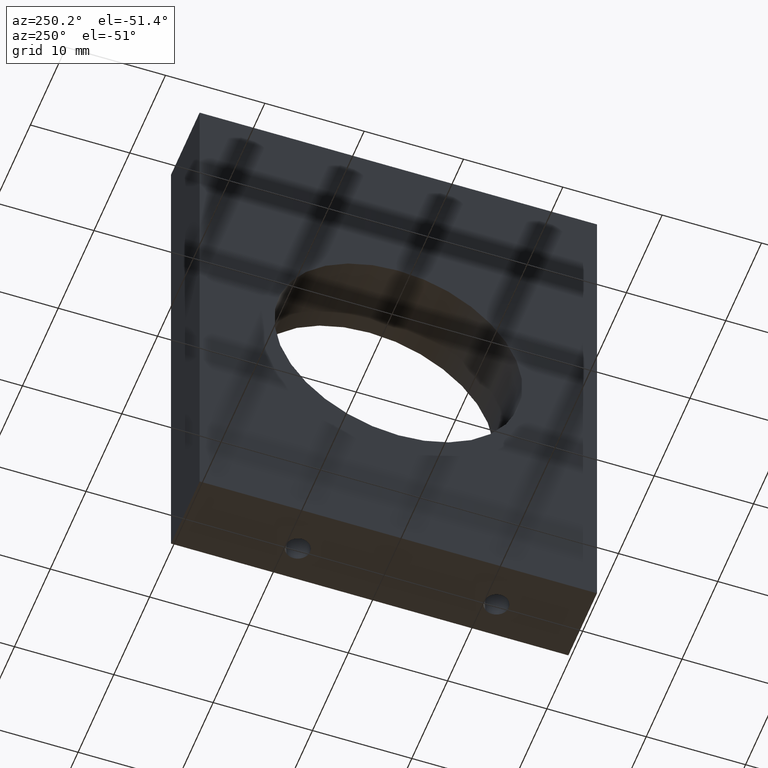
[diagram: clean part render]
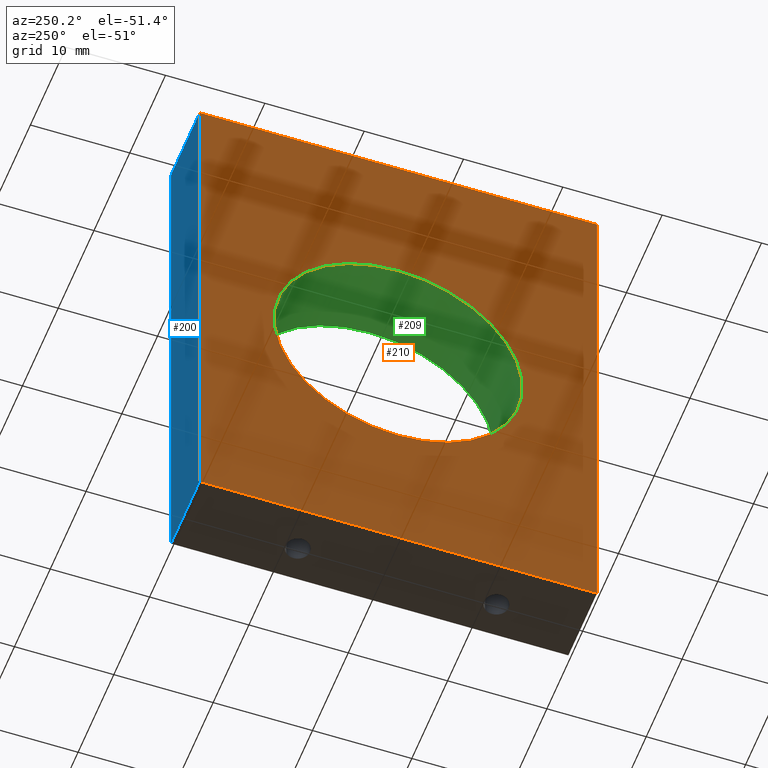
[diagram: same view with three faces highlighted in distinct colors, each labeled with its STEP entity id]
A machine part, auxiliary view with three faces highlighted in distinct colors.
Their STEP definitions:

[orange] entity #210 — the highlighted planar face has unit normal (-1, 0, 0).
#20=FACE_BOUND('',#76,.T.);
#39=CIRCLE('',#241,12.5);
#55=FACE_OUTER_BOUND('',#75,.T.);
#75=EDGE_LOOP('',(#168,#169,#170,#171));
#76=EDGE_LOOP('',(#172));
#89=LINE('',#321,#101);
#90=LINE('',#354,#102);
#91=LINE('',#355,#103);
#92=LINE('',#356,#104);
#101=VECTOR('',#255,10.);
#102=VECTOR('',#296,10.);
#103=VECTOR('',#297,10.);
#104=VECTOR('',#298,10.);
#110=VERTEX_POINT('',#314);
#113=VERTEX_POINT('',#319);
#122=VERTEX_POINT('',#347);
#124=VERTEX_POINT('',#352);
#125=VERTEX_POINT('',#353);
#131=EDGE_CURVE('',#113,#110,#89,.T.);
#140=EDGE_CURVE('',#122,#122,#39,.T.);
#142=EDGE_CURVE('',#124,#125,#90,.T.);
#143=EDGE_CURVE('',#125,#110,#91,.T.);
#144=EDGE_CURVE('',#124,#113,#92,.T.);
#168=ORIENTED_EDGE('',*,*,#142,.T.);
#169=ORIENTED_EDGE('',*,*,#143,.T.);
#170=ORIENTED_EDGE('',*,*,#131,.F.);
#171=ORIENTED_EDGE('',*,*,#144,.F.);
#172=ORIENTED_EDGE('',*,*,#140,.T.);
#195=PLANE('',#243);
#210=ADVANCED_FACE('',(#55,#20),#195,.T.);
#241=AXIS2_PLACEMENT_3D('',#348,#290,#291);
#243=AXIS2_PLACEMENT_3D('',#351,#294,#295);
#255=DIRECTION('',(1.88341405963196E-16,0.,1.));
#290=DIRECTION('center_axis',(1.,0.,-1.88341405963196E-16));
#291=DIRECTION('ref_axis',(0.,0.,1.));
#294=DIRECTION('center_axis',(-1.,0.,1.88341405963196E-16));
#295=DIRECTION('ref_axis',(1.77635683940025E-16,0.,1.));
#296=DIRECTION('',(1.88341405963196E-16,0.,1.));
#297=DIRECTION('',(0.,1.,0.));
#298=DIRECTION('',(0.,1.,0.));
#314=CARTESIAN_POINT('',(-4.,40.,28.));
#319=CARTESIAN_POINT('',(-4.00000000000001,40.,-28.));
#321=CARTESIAN_POINT('',(-4.00000000000001,40.,-28.));
#347=CARTESIAN_POINT('',(-4.00000000000001,20.,-12.5));
#348=CARTESIAN_POINT('Origin',(-4.00000000000001,20.,-1.33226762955019E-14));
#351=CARTESIAN_POINT('Origin',(-4.00000000000001,0.,-28.));
#352=CARTESIAN_POINT('',(-4.00000000000001,0.,-28.));
#353=CARTESIAN_POINT('',(-4.,0.,28.));
#354=CARTESIAN_POINT('',(-4.00000000000001,0.,-28.));
#355=CARTESIAN_POINT('',(-4.,0.,28.));
#356=CARTESIAN_POINT('',(-4.00000000000001,0.,-28.));

[blue] entity #200 — the highlighted planar face has unit normal (0, 1, 0).
#45=FACE_OUTER_BOUND('',#60,.T.);
#60=EDGE_LOOP('',(#150,#151,#152,#153));
#86=LINE('',#316,#98);
#87=LINE('',#318,#99);
#88=LINE('',#320,#100);
#89=LINE('',#321,#101);
#98=VECTOR('',#252,10.);
#99=VECTOR('',#253,10.);
#100=VECTOR('',#254,10.);
#101=VECTOR('',#255,10.);
#110=VERTEX_POINT('',#314);
#111=VERTEX_POINT('',#315);
#112=VERTEX_POINT('',#317);
#113=VERTEX_POINT('',#319);
#128=EDGE_CURVE('',#110,#111,#86,.T.);
#129=EDGE_CURVE('',#111,#112,#87,.T.);
#130=EDGE_CURVE('',#112,#113,#88,.T.);
#131=EDGE_CURVE('',#113,#110,#89,.T.);
#150=ORIENTED_EDGE('',*,*,#128,.T.);
#151=ORIENTED_EDGE('',*,*,#129,.T.);
#152=ORIENTED_EDGE('',*,*,#130,.T.);
#153=ORIENTED_EDGE('',*,*,#131,.T.);
#194=PLANE('',#223);
#200=ADVANCED_FACE('',(#45),#194,.T.);
#223=AXIS2_PLACEMENT_3D('',#313,#250,#251);
#250=DIRECTION('center_axis',(0.,1.,0.));
#251=DIRECTION('ref_axis',(0.,0.,1.));
#252=DIRECTION('',(1.,0.,0.));
#253=DIRECTION('',(-5.94762334620619E-17,0.,-1.));
#254=DIRECTION('',(-1.,0.,0.));
#255=DIRECTION('',(1.88341405963196E-16,0.,1.));
#313=CARTESIAN_POINT('Origin',(0.,40.,-1.33226762955019E-14));
#314=CARTESIAN_POINT('',(-4.,40.,28.));
#315=CARTESIAN_POINT('',(4.,40.,28.));
#316=CARTESIAN_POINT('',(-4.,40.,28.));
#317=CARTESIAN_POINT('',(4.,40.,-28.));
#318=CARTESIAN_POINT('',(4.,40.,28.));
#319=CARTESIAN_POINT('',(-4.00000000000001,40.,-28.));
#320=CARTESIAN_POINT('',(4.,40.,-28.));
#321=CARTESIAN_POINT('',(-4.00000000000001,40.,-28.));

[green] entity #209 — the highlighted cylindrical surface (bore or boss wall) has radius 12.5 mm, axis along (-1, 0, 0).
#19=FACE_BOUND('',#74,.T.);
#30=CYLINDRICAL_SURFACE('',#240,12.5);
#39=CIRCLE('',#241,12.5);
#40=CIRCLE('',#242,12.5);
#54=FACE_OUTER_BOUND('',#73,.T.);
#73=EDGE_LOOP('',(#166));
#74=EDGE_LOOP('',(#167));
#122=VERTEX_POINT('',#347);
#123=VERTEX_POINT('',#349);
#140=EDGE_CURVE('',#122,#122,#39,.T.);
#141=EDGE_CURVE('',#123,#123,#40,.T.);
#166=ORIENTED_EDGE('',*,*,#140,.F.);
#167=ORIENTED_EDGE('',*,*,#141,.F.);
#209=ADVANCED_FACE('',(#54,#19),#30,.F.);
#240=AXIS2_PLACEMENT_3D('',#346,#288,#289);
#241=AXIS2_PLACEMENT_3D('',#348,#290,#291);
#242=AXIS2_PLACEMENT_3D('',#350,#292,#293);
#288=DIRECTION('center_axis',(-1.,0.,0.));
#289=DIRECTION('ref_axis',(0.,0.,1.));
#290=DIRECTION('center_axis',(1.,0.,-1.88341405963196E-16));
#291=DIRECTION('ref_axis',(0.,0.,1.));
#292=DIRECTION('center_axis',(-1.,0.,5.94762334620619E-17));
#293=DIRECTION('ref_axis',(0.,0.,1.));
#346=CARTESIAN_POINT('Origin',(4.,20.,-1.33226762955019E-14));
#347=CARTESIAN_POINT('',(-4.00000000000001,20.,-12.5));
#348=CARTESIAN_POINT('Origin',(-4.00000000000001,20.,-1.33226762955019E-14));
#349=CARTESIAN_POINT('',(4.,20.,-12.5));
#350=CARTESIAN_POINT('Origin',(4.,20.,-1.33226762955019E-14));